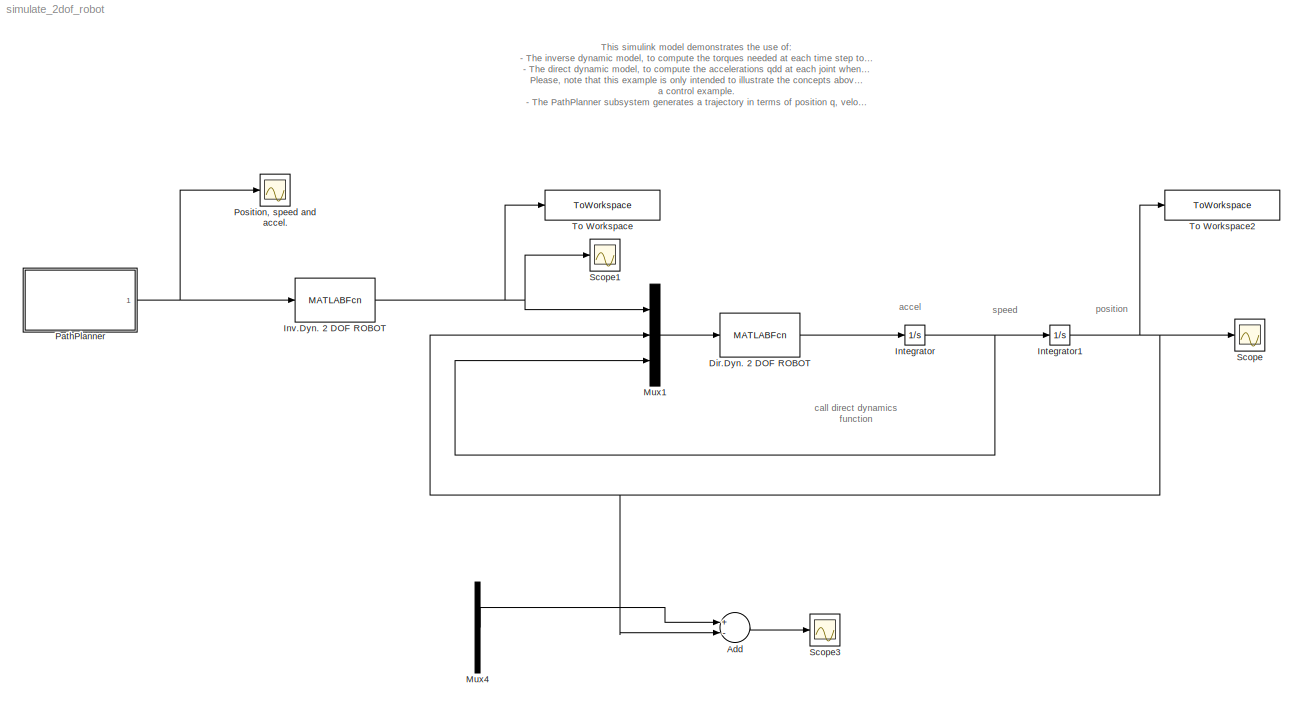
MODEL simulate_2dof_robot
KIND model
BLOCK [Sum] Add
  InputSameDT = off
  Inputs = +-
  OutDataTypeStr = Inherit: Inherit via internal rule
  Ports = [2, 1]
  SID = 207
  SaturateOnIntegerOverflow = off
BLOCK [MATLABFcn] Dir.Dyn. 2 DOF ROBOT
  MATLABFcn = call_direct_dynamics_2dofplanar_fast(u)
  OutputDimensions = 2
  Ports = [1, 1]
  SID = 182
BLOCK [Integrator] Integrator
  InitialCondition = [0 0]
  Ports = [1, 1]
  SID = 183
BLOCK [Integrator] Integrator1
  InitialCondition = [0 0]
  Ports = [1, 1]
  SID = 184
BLOCK [MATLABFcn] Inv.Dyn. 2 DOF ROBOT
  MATLABFcn = call_inverse_dynamics_2dofplanar_fast(u)
  OutputDimensions = 2
  Ports = [1, 1]
  SID = 181
BLOCK [Mux] Mux1
  DisplayOption = bar
  Inputs = 3
  Ports = [3, 1]
  SID = 185
BLOCK [Mux] Mux4
  DisplayOption = bar
  Inputs = 2
  Ports = [2, 1]
  SID = 208
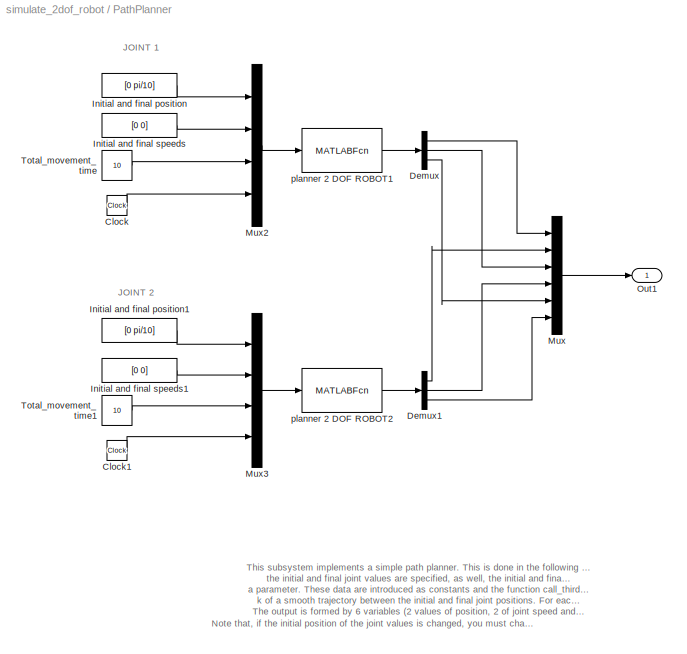
BLOCK [SubSystem] PathPlanner
  FunctionWithSeparateData = off
  MaskDisplay = port_label('output', 1, 'q, qd, qdd')
  MaskHideContents = off
  MaskIconFrame = on
  MaskIconOpaque = on
  MaskIconRotate = none
  MaskIconUnits = autoscale
  MaskPortRotate = default
  MinAlgLoopOccurrences = off
  Opaque = off
  Ports = [0, 1]
  PropExecContextOutsideSubsystem = off
  RTWSystemCode = Auto
  RequestExecContextInheritance = off
  SID = 218
BLOCK [Clock] PathPlanner/Clock
  Decimation = 10
  SID = 190
BLOCK [Clock] PathPlanner/Clock1
  Decimation = 10
  SID = 196
BLOCK [Demux] PathPlanner/Demux
  DisplayOption = bar
  Outputs = 3
  Ports = [1, 3]
  SID = 202
BLOCK [Demux] PathPlanner/Demux1
  DisplayOption = bar
  Outputs = 3
  Ports = [1, 3]
  SID = 203
BLOCK [Constant] PathPlanner/Initial and final position
  SID = 192
  Value = [0 pi/10]
BLOCK [Constant] PathPlanner/Initial and final position1
  SID = 197
  Value = [0 pi/10]
BLOCK [Constant] PathPlanner/Initial and final speeds
  SID = 193
  Value = [0 0]
BLOCK [Constant] PathPlanner/Initial and final speeds1
  SID = 198
  Value = [0 0]
BLOCK [Mux] PathPlanner/Mux
  DisplayOption = bar
  Inputs = 6
  Ports = [6, 1]
  SID = 204
BLOCK [Mux] PathPlanner/Mux2
  DisplayOption = bar
  Ports = [4, 1]
  SID = 189
BLOCK [Mux] PathPlanner/Mux3
  DisplayOption = bar
  Ports = [4, 1]
  SID = 199
BLOCK [Outport] PathPlanner/Out1
  IconDisplay = Port number
  SID = 219
BLOCK [Constant] PathPlanner/Total_movement_time
  SID = 195
  Value = 10
BLOCK [Constant] PathPlanner/Total_movement_time1
  SID = 200
  Value = 10
BLOCK [MATLABFcn] PathPlanner/planner 2 DOF ROBOT1
  MATLABFcn = call_third_order_planner(u)
  OutputDimensions = 3
  Ports = [1, 1]
  SID = 194
BLOCK [MATLABFcn] PathPlanner/planner 2 DOF ROBOT2
  MATLABFcn = call_third_order_planner(u)
  OutputDimensions = 3
  Ports = [1, 1]
  SID = 201
BLOCK [Scope] Position, speed and accel.
  DataFormat = StructureWithTime
  Floating = off
  NumInputPorts = 1
  Ports = [1]
  SID = 206
  SampleTime = 0
  SaveName = ScopeData2
  YMax = 0.525
  YMin = -0.05
BLOCK [Scope] Scope
  DataFormat = StructureWithTime
  Floating = off
  NumInputPorts = 1
  Ports = [1]
  SID = 169
  SampleTime = 0
  YMax = 0.25
  YMin = 0.11
BLOCK [Scope] Scope1
  DataFormat = StructureWithTime
  Floating = off
  NumInputPorts = 1
  Ports = [1]
  SID = 205
  SampleTime = 0
  SaveName = ScopeData1
  YMax = 20
  YMin = 4
BLOCK [Scope] Scope3
  DataFormat = StructureWithTime
  Floating = off
  NumInputPorts = 1
  Ports = [1]
  SID = 209
  SampleTime = 0
  SaveName = ScopeData3
  YMax = 4e-13
  YMin = -1.2e-12
BLOCK [ToWorkspace] To Workspace
  MaxDataPoints = inf
  Ports = [1]
  SID = 186
  SampleTime = -1
  SaveFormat = Array
  VariableName = joint_torques
BLOCK [ToWorkspace] To Workspace2
  MaxDataPoints = inf
  Ports = [1]
  SID = 187
  SampleTime = -1
  SaveFormat = Array
  VariableName = joint_positions
ANNOTATION (root): This simulink model demonstrates the use of:\n- The inverse dynamic model, to compute the torques needed at each time step to bring the arm to a desired kinematic state.\n- The direct dynamic model, to compute the accelerations qdd at each joint when a particular torque is applied.\nPlease, note that this example is only intended to illustrate the concepts above. This example is not intended to be...<+548ch>
ANNOTATION (root): accel
ANNOTATION (root): call direct dynamics\n function
ANNOTATION (root): position
ANNOTATION (root): speed
ANNOTATION PathPlanner: JOINT 1
ANNOTATION PathPlanner: JOINT 2
ANNOTATION PathPlanner: Note that, if the initial position of the joint values is changed, you must change the initial values of the position integrator. The same applies to the speed.
ANNOTATION PathPlanner: This subsystem implements a simple path planner. This is done in the following way: For each of the two joints,\nthe initial and final joint values are specified, as well, the initial and final speeds are also specified. The total time needed to perform the movement is also\na parameter. These data are introduced as constants and the function call_third_order_planner is executed. At each time step...<+327ch>
LINE Add:1 -> Scope3:1
LINE Dir.Dyn. 2 DOF ROBOT:1 -> Integrator:1
NET Integrator1:1 -> Add:2, Mux1:2, Scope:1, To Workspace2:1
NET Integrator:1 -> Integrator1:1, Mux1:3
NET Inv.Dyn. 2 DOF ROBOT:1 -> Mux1:1, Scope1:1, To Workspace:1
LINE Mux1:1 -> Dir.Dyn. 2 DOF ROBOT:1
LINE Mux4:1 -> Add:1
LINE PathPlanner/Clock1:1 -> PathPlanner/Mux3:4
LINE PathPlanner/Clock:1 -> PathPlanner/Mux2:4
LINE PathPlanner/Demux1:1 -> PathPlanner/Mux:2
LINE PathPlanner/Demux1:2 -> PathPlanner/Mux:4
LINE PathPlanner/Demux1:3 -> PathPlanner/Mux:6
LINE PathPlanner/Demux:1 -> PathPlanner/Mux:1
LINE PathPlanner/Demux:2 -> PathPlanner/Mux:3
LINE PathPlanner/Demux:3 -> PathPlanner/Mux:5
LINE PathPlanner/Initial and final position1:1 -> PathPlanner/Mux3:1
LINE PathPlanner/Initial and final position:1 -> PathPlanner/Mux2:1
LINE PathPlanner/Initial and final speeds1:1 -> PathPlanner/Mux3:2
LINE PathPlanner/Initial and final speeds:1 -> PathPlanner/Mux2:2
LINE PathPlanner/Mux2:1 -> PathPlanner/planner 2 DOF ROBOT1:1
LINE PathPlanner/Mux3:1 -> PathPlanner/planner 2 DOF ROBOT2:1
LINE PathPlanner/Mux:1 -> PathPlanner/Out1:1
LINE PathPlanner/Total_movement_time1:1 -> PathPlanner/Mux3:3
LINE PathPlanner/Total_movement_time:1 -> PathPlanner/Mux2:3
LINE PathPlanner/planner 2 DOF ROBOT1:1 -> PathPlanner/Demux:1
LINE PathPlanner/planner 2 DOF ROBOT2:1 -> PathPlanner/Demux1:1
NET PathPlanner:1 -> Inv.Dyn. 2 DOF ROBOT:1, Position, speed and accel.:1
note: NET lines group one-source signal fan-out (src -> all destinations, sorted); 1:1 wires keep LINE
